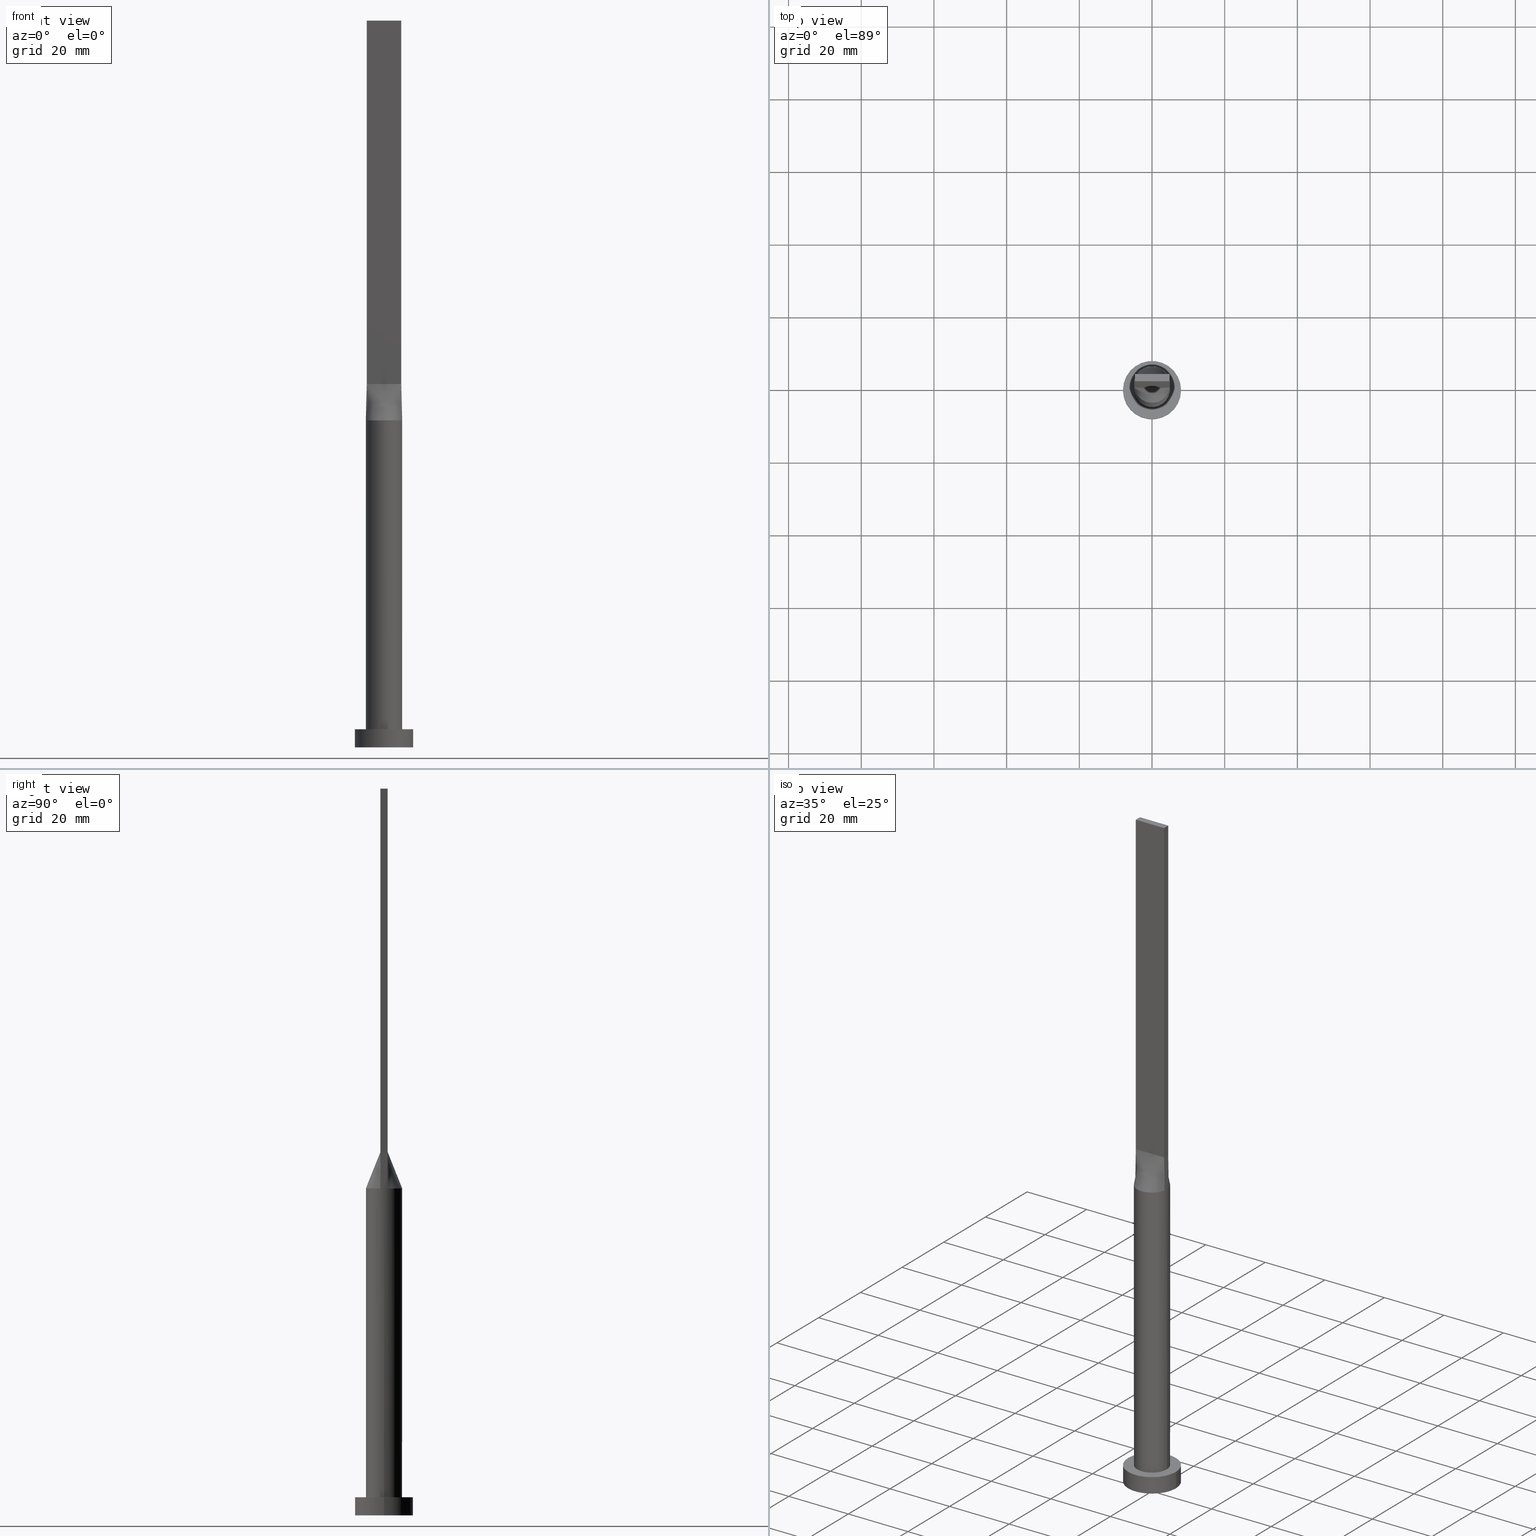
[diagram: canonical four-view strip — front | top / right | iso, engineering-drawing reading convention]
A machine part, canonical four-view strip (front | top / right | iso — engineering-drawing reading convention). The complete STEP part file that produces these views, byte-faithful:
ISO-10303-21;
HEADER;
FILE_DESCRIPTION (( 'STEP AP203' ),
    '1' );
FILE_NAME ('bb7b.STEP',
    '2023-02-13T09:51:01',
    ( '' ),
    ( '' ),
    'SwSTEP 2.0',
    'SolidWorks 2019',
    '' );
FILE_SCHEMA (( 'CONFIG_CONTROL_DESIGN' ));
ENDSEC;

DATA;
#1 = CARTESIAN_POINT ( 'NONE',  ( -0.9895833333333223791, -0.9999999999999991118, 100.0000000000000000 ) ) ;
#2 = CARTESIAN_POINT ( 'NONE',  ( -0.3380808736611314869, 4.999999999999999112, 90.00000000000002842 ) ) ;
#3 = VERTEX_POINT ( 'NONE', #250 ) ;
#4 = AXIS2_PLACEMENT_3D ( 'NONE', #117, #489, #70 ) ;
#5 = DIRECTION ( 'NONE',  ( 1.000000000000000000, 0.000000000000000000, 0.000000000000000000 ) ) ;
#6 = LOCAL_TIME ( 10, 51, 1.000000000000000000, #264 ) ;
#7 = CARTESIAN_POINT ( 'NONE',  ( -2.546422404201597711, 4.351724242187074765, 90.00000000000001421 ) ) ;
#8 = ADVANCED_FACE ( 'NONE', ( #301 ), #441, .T. ) ;
#9 = CARTESIAN_POINT ( 'NONE',  ( -4.963482788771057308, -0.6940665520219756468, 90.00000000000001421 ) ) ;
#10 = CARTESIAN_POINT ( 'NONE',  ( -4.750000000000000000, 1.000000000000000000, 100.0000000000000000 ) ) ;
#11 = FACE_OUTER_BOUND ( 'NONE', #283, .T. ) ;
#12 = CARTESIAN_POINT ( 'NONE',  ( 0.7916666666666767327, -0.9999999999999995559, 100.0000000000000000 ) ) ;
#13 = CARTESIAN_POINT ( 'NONE',  ( -0.6760916456145782405, 4.965368365385191218, 90.00000000000001421 ) ) ;
#14 = CARTESIAN_POINT ( 'NONE',  ( 0.000000000000000000, 0.000000000000000000, 5.000000000000000000 ) ) ;
#15 = CARTESIAN_POINT ( 'NONE',  ( 4.750000000000000000, 1.000000000000000000, 200.0000000000000000 ) ) ;
#16 = CC_DESIGN_APPROVAL ( #94, ( #355 ) ) ;
#17 = EDGE_CURVE ( 'NONE', #411, #415, #75, .T. ) ;
#18 = CARTESIAN_POINT ( 'NONE',  ( 4.963482788771055532, -0.6940665520219791995, 90.00000000000001421 ) ) ;
#19 = LINE ( 'NONE', #513, #455 ) ;
#20 = LINE ( 'NONE', #398, #31 ) ;
#21 = ORIENTED_EDGE ( 'NONE', *, *, #329, .F. ) ;
#22 = DIRECTION ( 'NONE',  ( 0.000000000000000000, -1.000000000000000000, 0.000000000000000000 ) ) ;
#23 = CARTESIAN_POINT ( 'NONE',  ( -4.750000000000000000, 1.000000000000000000, 100.0000000000000000 ) ) ;
#24 = CARTESIAN_POINT ( 'NONE',  ( 4.808752461626938590, 1.429035605956548549, 90.00000000000004263 ) ) ;
#25 = CARTESIAN_POINT ( 'NONE',  ( 0.6760916456145784625, 4.965368365385191218, 90.00000000000004263 ) ) ;
#26 = EDGE_LOOP ( 'NONE', ( #208, #571 ) ) ;
#27 = CARTESIAN_POINT ( 'NONE',  ( 4.750000000000000000, 0.3333333333333336479, 100.0000000000000000 ) ) ;
#28 = ADVANCED_FACE ( 'NONE', ( #397 ), #383, .T. ) ;
#29 = ORIENTED_EDGE ( 'NONE', *, *, #366, .F. ) ;
#30 = CALENDAR_DATE ( 2023, 13, 2 ) ;
#31 = VECTOR ( 'NONE', #158, 1000.000000000000000 ) ;
#32 = ORIENTED_EDGE ( 'NONE', *, *, #351, .F. ) ;
#33 =( LENGTH_UNIT ( ) NAMED_UNIT ( * ) SI_UNIT ( .MILLI., .METRE. ) );
#34 = LINE ( 'NONE', #281, #335 ) ;
#35 = ORIENTED_EDGE ( 'NONE', *, *, #39, .F. ) ;
#36 = EDGE_LOOP ( 'NONE', ( #419, #178, #395, #514, #124 ) ) ;
#37 = DATE_AND_TIME ( #164, #373 ) ;
#38 = CARTESIAN_POINT ( 'NONE',  ( 5.000000000000000000, 0.3470731991229993874, 90.00000000000002842 ) ) ;
#39 = EDGE_CURVE ( 'NONE', #3, #116, #358, .T. ) ;
#40 = CIRCLE ( 'NONE', #211, 5.000000000000000000 ) ;
#41 = EDGE_LOOP ( 'NONE', ( #82, #501, #61, #456 ) ) ;
#42 = EDGE_LOOP ( 'NONE', ( #468, #461, #225, #334 ) ) ;
#43 = PERSON_AND_ORGANIZATION ( #442, #336 ) ;
#44 = CARTESIAN_POINT ( 'NONE',  ( -0.6760916456145810161, -4.965368365385190330, 90.00000000000002842 ) ) ;
#45 = AXIS2_PLACEMENT_3D ( 'NONE', #261, #314, #321 ) ;
#46 = VERTEX_POINT ( 'NONE', #499 ) ;
#47 = DIRECTION ( 'NONE',  ( -1.000000000000000000, 0.000000000000000000, 0.000000000000000000 ) ) ;
#48 = CARTESIAN_POINT ( 'NONE',  ( -3.900093280396790263, -3.182195704254722646, 90.00000000000002842 ) ) ;
#49 = DIRECTION ( 'NONE',  ( -0.000000000000000000, -0.000000000000000000, -1.000000000000000000 ) ) ;
#50 = AXIS2_PLACEMENT_3D ( 'NONE', #478, #523, #187 ) ;
#51 = CARTESIAN_POINT ( 'NONE',  ( -0.3958333333333227677, -0.9999999999999991118, 100.0000000000000000 ) ) ;
#52 = PRODUCT ( 'bb7b', 'bb7b', '', ( #593 ) ) ;
#53 = CARTESIAN_POINT ( 'NONE',  ( -1.979166666666656749, -0.9999999999999991118, 100.0000000000000000 ) ) ;
#54 = CARTESIAN_POINT ( 'NONE',  ( 3.166666666666663854, 1.000000000000000000, 100.0000000000000142 ) ) ;
#55 = LINE ( 'NONE', #255, #470 ) ;
#56 = CARTESIAN_POINT ( 'NONE',  ( 1.649264041307594297, 4.731318088779739917, 89.99999999999998579 ) ) ;
#57 = ADVANCED_FACE ( 'NONE', ( #566 ), #465, .T. ) ;
#58 = CARTESIAN_POINT ( 'NONE',  ( -4.750000000000000000, -0.9999999999999991118, 100.0000000000000000 ) ) ;
#59 = CARTESIAN_POINT ( 'NONE',  ( -4.354166666666667851, 1.000000000000000000, 100.0000000000000142 ) ) ;
#60 = DIRECTION ( 'NONE',  ( -1.000000000000000000, 0.000000000000000000, 0.000000000000000000 ) ) ;
#61 = ORIENTED_EDGE ( 'NONE', *, *, #481, .T. ) ;
#62 = LINE ( 'NONE', #248, #242 ) ;
#63 = CARTESIAN_POINT ( 'NONE',  ( 0.000000000000000000, 0.000000000000000000, 0.000000000000000000 ) ) ;
#64 = CARTESIAN_POINT ( 'NONE',  ( -4.750000000000000000, 1.000000000000000000, 200.0000000000000000 ) ) ;
#65 = VERTEX_POINT ( 'NONE', #180 ) ;
#66 = CARTESIAN_POINT ( 'NONE',  ( 4.750000000000000000, 1.000000000000000000, 100.0000000000000000 ) ) ;
#67 = EDGE_CURVE ( 'NONE', #415, #131, #371, .T. ) ;
#68 = APPLICATION_CONTEXT ( 'configuration controlled 3d designs of mechanical parts and assemblies' ) ;
#69 = DIRECTION ( 'NONE',  ( 1.000000000000000000, 0.000000000000000000, 0.000000000000000000 ) ) ;
#70 = DIRECTION ( 'NONE',  ( 1.000000000000000000, 0.000000000000000000, 0.000000000000000000 ) ) ;
#71 = DIRECTION ( 'NONE',  ( 1.000000000000000000, 0.000000000000000000, -0.000000000000000000 ) ) ;
#72 = VECTOR ( 'NONE', #448, 1000.000000000000000 ) ;
#73 = VERTEX_POINT ( 'NONE', #64 ) ;
#74 = PERSON_AND_ORGANIZATION_ROLE ( 'design_supplier' ) ;
#75 = CIRCLE ( 'NONE', #140, 8.000000000000000000 ) ;
#76 = ADVANCED_FACE ( 'NONE', ( #449 ), #543, .T. ) ;
#77 = APPROVAL_ROLE ( '' ) ;
#78 = DIRECTION ( 'NONE',  ( 0.000000000000000000, 0.000000000000000000, 1.000000000000000000 ) ) ;
#79 = AXIS2_PLACEMENT_3D ( 'NONE', #538, #482, #295 ) ;
#80 = VECTOR ( 'NONE', #198, 999.9999999999998863 ) ;
#81 = COORDINATED_UNIVERSAL_TIME_OFFSET ( 1, 0, .AHEAD. ) ;
#82 = ORIENTED_EDGE ( 'NONE', *, *, #323, .T. ) ;
#83 = CARTESIAN_POINT ( 'NONE',  ( 0.000000000000000000, 0.000000000000000000, 0.000000000000000000 ) ) ;
#84 = VERTEX_POINT ( 'NONE', #434 ) ;
#85 = CARTESIAN_POINT ( 'NONE',  ( -4.750000000000000000, -0.9999999999999991118, 100.0000000000000000 ) ) ;
#86 = AXIS2_PLACEMENT_3D ( 'NONE', #498, #78, #266 ) ;
#87 = ORIENTED_EDGE ( 'NONE', *, *, #126, .T. ) ;
#88 = DATE_TIME_ROLE ( 'classification_date' ) ;
#89 = CARTESIAN_POINT ( 'NONE',  ( -4.214142381859629971, -2.735777372109855499, 90.00000000000005684 ) ) ;
#90 = B_SPLINE_SURFACE_WITH_KNOTS ( 'NONE', 3, 1, ( 
 ( #138, #464 ),
 ( #417, #222 ),
 ( #318, #474 ),
 ( #386, #151 ),
 ( #9, #389 ),
 ( #118, #58 ) ),
 .UNSPECIFIED., .F., .F., .F.,
 ( 4, 2, 4 ),
 ( 2, 2 ),
 ( 0.000000000000000000, 0.5000000000000000000, 1.000000000000000000 ),
 ( 0.000000000000000000, 1.000000000000000000 ),
 .UNSPECIFIED. ) ;
#91 = ORIENTED_EDGE ( 'NONE', *, *, #39, .T. ) ;
#92 = SHAPE_DEFINITION_REPRESENTATION ( #141, #181 ) ;
#93 = CARTESIAN_POINT ( 'NONE',  ( -3.166666666666660301, -0.9999999999999991118, 100.0000000000000142 ) ) ;
#94 = APPROVAL ( #596, 'NEUR�EN�' ) ;
#95 = APPROVAL_ROLE ( '' ) ;
#96 = FACE_OUTER_BOUND ( 'NONE', #458, .T. ) ;
#97 = CIRCLE ( 'NONE', #79, 5.000000000000000000 ) ;
#98 =( GEOMETRIC_REPRESENTATION_CONTEXT ( 3 ) GLOBAL_UNCERTAINTY_ASSIGNED_CONTEXT ( ( #170 ) ) GLOBAL_UNIT_ASSIGNED_CONTEXT ( ( #33, #408, #271 ) ) REPRESENTATION_CONTEXT ( 'NONE', 'WORKASPACE' ) );
#99 = CARTESIAN_POINT ( 'NONE',  ( 0.3958333333333280968, 1.000000000000000000, 100.0000000000000000 ) ) ;
#100 = CARTESIAN_POINT ( 'NONE',  ( -4.750000000000000000, -0.9999999999999991118, 200.0000000000000000 ) ) ;
#101 = CARTESIAN_POINT ( 'NONE',  ( 2.546422404201595491, -4.351724242187078318, 90.00000000000004263 ) ) ;
#102 = LINE ( 'NONE', #249, #265 ) ;
#103 = CARTESIAN_POINT ( 'NONE',  ( -1.979166666666670737, 1.000000000000000000, 100.0000000000000284 ) ) ;
#104 = VERTEX_POINT ( 'NONE', #193 ) ;
#105 = CARTESIAN_POINT ( 'NONE',  ( -4.892747712986291297, 1.030052143680498133, 90.00000000000001421 ) ) ;
#106 = B_SPLINE_SURFACE_WITH_KNOTS ( 'NONE', 3, 1, ( 
 ( #356, #390 ),
 ( #532, #344 ),
 ( #143, #346 ),
 ( #576, #54 ),
 ( #522, #111 ),
 ( #241, #298 ),
 ( #479, #384 ),
 ( #56, #184 ),
 ( #379, #192 ),
 ( #146, #99 ),
 ( #154, #350 ),
 ( #2, #535 ),
 ( #13, #339 ),
 ( #529, #473 ),
 ( #573, #387 ),
 ( #7, #525 ),
 ( #115, #103 ),
 ( #108, #236 ),
 ( #433, #570 ),
 ( #476, #189 ),
 ( #484, #59 ),
 ( #246, #10 ) ),
 .UNSPECIFIED., .F., .F., .F.,
 ( 4, 2, 2, 2, 2, 2, 2, 2, 2, 2, 4 ),
 ( 2, 2 ),
 ( 0.000000000000000000, 0.1250000000000000278, 0.2500000000000000000, 0.3749999999999999445, 0.4375000000000000000, 0.5000000000000000000, 0.5625000000000000000, 0.6250000000000000000, 0.7500000000000000000, 0.8750000000000001110, 1.000000000000000000 ),
 ( 0.000000000000000000, 1.000000000000000000 ),
 .UNSPECIFIED. ) ;
#107 = CARTESIAN_POINT ( 'NONE',  ( 1.649264041307594297, 4.731318088779739917, 89.99999999999998579 ) ) ;
#108 = CARTESIAN_POINT ( 'NONE',  ( -3.900093280396789819, 3.182195704254724422, 90.00000000000001421 ) ) ;
#109 = VECTOR ( 'NONE', #402, 999.9999999999998863 ) ;
#110 = DIRECTION ( 'NONE',  ( -0.000000000000000000, -0.000000000000000000, -1.000000000000000000 ) ) ;
#111 = CARTESIAN_POINT ( 'NONE',  ( 2.770833333333329929, 1.000000000000000000, 100.0000000000000284 ) ) ;
#112 = ORIENTED_EDGE ( 'NONE', *, *, #520, .F. ) ;
#113 = ADVANCED_FACE ( 'NONE', ( #388 ), #412, .F. ) ;
#114 = CARTESIAN_POINT ( 'NONE',  ( 4.821374462466871513, 1.015026202624605522, 95.00000000000000000 ) ) ;
#115 = CARTESIAN_POINT ( 'NONE',  ( -3.067114325249248097, 3.991228734590924976, 90.00000000000002842 ) ) ;
#116 = VERTEX_POINT ( 'NONE', #217 ) ;
#117 = CARTESIAN_POINT ( 'NONE',  ( 0.000000000000000000, 0.000000000000000000, 90.00000000000001421 ) ) ;
#118 = CARTESIAN_POINT ( 'NONE',  ( -4.892748924933745691, -1.030052405249208158, 90.00000000000001421 ) ) ;
#119 = CARTESIAN_POINT ( 'NONE',  ( 0.3958333333333435289, -0.9999999999999993339, 100.0000000000000142 ) ) ;
#120 = DIRECTION ( 'NONE',  ( -1.000000000000000000, 0.000000000000000000, 0.000000000000000000 ) ) ;
#121 = ORIENTED_EDGE ( 'NONE', *, *, #173, .T. ) ;
#122 = DIRECTION ( 'NONE',  ( 0.000000000000000000, 0.000000000000000000, 1.000000000000000000 ) ) ;
#123 = DIRECTION ( 'NONE',  ( -0.000000000000000000, -0.000000000000000000, -1.000000000000000000 ) ) ;
#124 = ORIENTED_EDGE ( 'NONE', *, *, #599, .F. ) ;
#125 = PERSON_AND_ORGANIZATION ( #442, #336 ) ;
#126 = EDGE_CURVE ( 'NONE', #84, #147, #205, .T. ) ;
#127 = CARTESIAN_POINT ( 'NONE',  ( -2.546422404201597711, 4.351724242187074765, 90.00000000000001421 ) ) ;
#128 = CARTESIAN_POINT ( 'NONE',  ( 0.000000000000000000, 0.000000000000000000, 0.000000000000000000 ) ) ;
#129 = DIRECTION ( 'NONE',  ( 0.000000000000000000, 0.000000000000000000, 1.000000000000000000 ) ) ;
#130 = ADVANCED_FACE ( 'NONE', ( #284 ), #233, .F. ) ;
#131 = VERTEX_POINT ( 'NONE', #227 ) ;
#132 = DIRECTION ( 'NONE',  ( 1.000000000000000000, 0.000000000000000000, -0.000000000000000000 ) ) ;
#133 = ORIENTED_EDGE ( 'NONE', *, *, #599, .T. ) ;
#134 = ADVANCED_FACE ( 'NONE', ( #418, #96 ), #507, .T. ) ;
#135 = VECTOR ( 'NONE', #527, 1000.000000000000000 ) ;
#136 = VERTEX_POINT ( 'NONE', #167 ) ;
#137 = DATE_AND_TIME ( #562, #422 ) ;
#138 = CARTESIAN_POINT ( 'NONE',  ( -4.892748924933745691, 1.030052405249209269, 90.00000000000001421 ) ) ;
#139 = CC_DESIGN_PERSON_AND_ORGANIZATION_ASSIGNMENT ( #462, #591, ( #416 ) ) ;
#140 = AXIS2_PLACEMENT_3D ( 'NONE', #197, #392, #69 ) ;
#141 = PRODUCT_DEFINITION_SHAPE ( 'NONE', 'NONE',  #416 ) ;
#142 = CARTESIAN_POINT ( 'NONE',  ( -3.067114325249248097, 3.991228734590924976, 90.00000000000002842 ) ) ;
#143 = CARTESIAN_POINT ( 'NONE',  ( 4.667610010780610885, 1.859271532507960289, 90.00000000000004263 ) ) ;
#144 = AXIS2_PLACEMENT_3D ( 'NONE', #300, #345, #569 ) ;
#145 = EDGE_CURVE ( 'NONE', #46, #147, #518, .T. ) ;
#146 = CARTESIAN_POINT ( 'NONE',  ( 0.6760916456145784625, 4.965368365385191218, 90.00000000000004263 ) ) ;
#147 = VERTEX_POINT ( 'NONE', #503 ) ;
#148 = LINE ( 'NONE', #396, #364 ) ;
#149 = PRODUCT_RELATED_PRODUCT_CATEGORY ( 'detail', '', ( #52 ) ) ;
#150 = AXIS2_PLACEMENT_3D ( 'NONE', #368, #129, #269 ) ;
#151 = CARTESIAN_POINT ( 'NONE',  ( -4.750000000000000000, -0.3333333333333323711, 100.0000000000000000 ) ) ;
#152 = PLANE ( 'NONE',  #391 ) ;
#153 = CARTESIAN_POINT ( 'NONE',  ( 3.900093280396789819, -3.182195704254725754, 90.00000000000002842 ) ) ;
#154 = CARTESIAN_POINT ( 'NONE',  ( 0.3380808736611315979, 4.999999999999999112, 90.00000000000001421 ) ) ;
#155 = ORIENTED_EDGE ( 'NONE', *, *, #215, .F. ) ;
#156 = DIRECTION ( 'NONE',  ( 1.000000000000000000, -6.847592668329501559E-17, 0.000000000000000000 ) ) ;
#157 = CARTESIAN_POINT ( 'NONE',  ( 5.000000000000000888, -0.3470731991230004421, 90.00000000000002842 ) ) ;
#158 = DIRECTION ( 'NONE',  ( -1.000000000000000000, -0.000000000000000000, -0.000000000000000000 ) ) ;
#159 = PERSON_AND_ORGANIZATION ( #442, #336 ) ;
#160 = LINE ( 'NONE', #201, #109 ) ;
#161 = CYLINDRICAL_SURFACE ( 'NONE', #210, 8.000000000000000000 ) ;
#162 = DIRECTION ( 'NONE',  ( -1.000000000000000000, 0.000000000000000000, 0.000000000000000000 ) ) ;
#163 = CARTESIAN_POINT ( 'NONE',  ( -1.331739278681919991, 4.830988864699813590, 90.00000000000001421 ) ) ;
#164 = CALENDAR_DATE ( 2023, 13, 2 ) ;
#165 = EDGE_CURVE ( 'NONE', #84, #104, #324, .T. ) ;
#166 = FACE_OUTER_BOUND ( 'NONE', #294, .T. ) ;
#167 = CARTESIAN_POINT ( 'NONE',  ( -4.750000000000000000, -0.9999999999999991118, 200.0000000000000000 ) ) ;
#168 = CARTESIAN_POINT ( 'NONE',  ( 4.750000000000000000, 1.000000000000000000, 100.0000000000000000 ) ) ;
#169 = CARTESIAN_POINT ( 'NONE',  ( -4.750000000000000000, -0.9999999999999991118, 200.0000000000000000 ) ) ;
#170 = UNCERTAINTY_MEASURE_WITH_UNIT (LENGTH_MEASURE( 1.000000000000000082E-05 ), #33, 'distance_accuracy_value', 'NONE');
#171 = DATE_AND_TIME ( #30, #6 ) ;
#172 = AXIS2_PLACEMENT_3D ( 'NONE', #307, #365, #132 ) ;
#173 = EDGE_CURVE ( 'NONE', #203, #131, #251, .T. ) ;
#174 = ORIENTED_EDGE ( 'NONE', *, *, #323, .F. ) ;
#175 = DIRECTION ( 'NONE',  ( 0.000000000000000000, 0.000000000000000000, 1.000000000000000000 ) ) ;
#176 = VECTOR ( 'NONE', #252, 1000.000000000000000 ) ;
#177 = ORIENTED_EDGE ( 'NONE', *, *, #232, .T. ) ;
#178 = ORIENTED_EDGE ( 'NONE', *, *, #520, .T. ) ;
#179 = ORIENTED_EDGE ( 'NONE', *, *, #505, .T. ) ;
#180 = CARTESIAN_POINT ( 'NONE',  ( -5.000000000000000888, -2.735102206719564433E-16, 90.00000000000002842 ) ) ;
#181 = ADVANCED_BREP_SHAPE_REPRESENTATION ( 'bb7b', ( #377, #347 ), #98 ) ;
#182 = CARTESIAN_POINT ( 'NONE',  ( -0.1979166666666562768, -0.9999999999999993339, 100.0000000000000142 ) ) ;
#183 = ADVANCED_FACE ( 'NONE', ( #582 ), #161, .T. ) ;
#184 = CARTESIAN_POINT ( 'NONE',  ( 0.9895833333333288184, 1.000000000000000000, 100.0000000000000000 ) ) ;
#185 = ORIENTED_EDGE ( 'NONE', *, *, #215, .T. ) ;
#186 = AXIS2_PLACEMENT_3D ( 'NONE', #15, #292, #348 ) ;
#187 = DIRECTION ( 'NONE',  ( 1.000000000000000000, 0.000000000000000000, -0.000000000000000000 ) ) ;
#188 = CARTESIAN_POINT ( 'NONE',  ( -5.000000000000000000, 0.000000000000000000, 90.00000000000001421 ) ) ;
#189 = CARTESIAN_POINT ( 'NONE',  ( -3.958333333333335258, 1.000000000000000000, 100.0000000000000284 ) ) ;
#190 = LINE ( 'NONE', #114, #80 ) ;
#191 = CARTESIAN_POINT ( 'NONE',  ( 2.546422404201596823, 4.351724242187075653, 90.00000000000001421 ) ) ;
#192 = CARTESIAN_POINT ( 'NONE',  ( 0.7916666666666618557, 1.000000000000000000, 100.0000000000000000 ) ) ;
#193 = CARTESIAN_POINT ( 'NONE',  ( 4.892748924933744803, 1.030052405249211045, 90.00000000000001421 ) ) ;
#194 = LINE ( 'NONE', #238, #176 ) ;
#195 = CARTESIAN_POINT ( 'NONE',  ( 0.9895833333333431403, -0.9999999999999995559, 100.0000000000000142 ) ) ;
#196 = DIRECTION ( 'NONE',  ( 1.000000000000000000, 0.000000000000000000, 0.000000000000000000 ) ) ;
#197 = CARTESIAN_POINT ( 'NONE',  ( 0.000000000000000000, 0.000000000000000000, 5.000000000000000000 ) ) ;
#198 = DIRECTION ( 'NONE',  ( -0.01427337385845005129, -0.003004920812305424214, 0.9998936149659166661 ) ) ;
#199 = CARTESIAN_POINT ( 'NONE',  ( 4.750000000000000000, -0.6666666666666664076, 100.0000000000000000 ) ) ;
#200 = CARTESIAN_POINT ( 'NONE',  ( 0.000000000000000000, 0.000000000000000000, 90.00000000000001421 ) ) ;
#201 = CARTESIAN_POINT ( 'NONE',  ( 4.821374462466871513, -1.015026202624605967, 95.00000000000000000 ) ) ;
#202 = FACE_OUTER_BOUND ( 'NONE', #213, .T. ) ;
#203 = VERTEX_POINT ( 'NONE', #204 ) ;
#204 = CARTESIAN_POINT ( 'NONE',  ( -8.000000000000000000, 0.000000000000000000, 0.000000000000000000 ) ) ;
#205 = LINE ( 'NONE', #403, #500 ) ;
#206 = CARTESIAN_POINT ( 'NONE',  ( 4.963482788771057308, 0.6940665520219779783, 90.00000000000001421 ) ) ;
#207 = CARTESIAN_POINT ( 'NONE',  ( 0.3380808736611315979, 4.999999999999999112, 90.00000000000001421 ) ) ;
#208 = ORIENTED_EDGE ( 'NONE', *, *, #173, .F. ) ;
#209 = COORDINATED_UNIVERSAL_TIME_OFFSET ( 1, 0, .AHEAD. ) ;
#210 = AXIS2_PLACEMENT_3D ( 'NONE', #267, #495, #310 ) ;
#211 = AXIS2_PLACEMENT_3D ( 'NONE', #200, #534, #5 ) ;
#212 = DIRECTION ( 'NONE',  ( 1.000000000000000000, 0.000000000000000000, 0.000000000000000000 ) ) ;
#213 = EDGE_LOOP ( 'NONE', ( #584, #133, #280, #367 ) ) ;
#214 = LINE ( 'NONE', #549, #544 ) ;
#215 = EDGE_CURVE ( 'NONE', #466, #453, #276, .T. ) ;
#216 = AXIS2_PLACEMENT_3D ( 'NONE', #296, #123, #60 ) ;
#217 = CARTESIAN_POINT ( 'NONE',  ( 4.750000000000000000, -0.9999999999999997780, 100.0000000000000000 ) ) ;
#218 = ORIENTED_EDGE ( 'NONE', *, *, #304, .F. ) ;
#219 = APPLICATION_PROTOCOL_DEFINITION ( 'international standard', 'config_control_design', 1994, #68 ) ;
#220 = DIRECTION ( 'NONE',  ( 1.000000000000000000, 0.000000000000000000, 0.000000000000000000 ) ) ;
#221 = VECTOR ( 'NONE', #110, 1000.000000000000000 ) ;
#222 = CARTESIAN_POINT ( 'NONE',  ( -4.750000000000000000, 0.6666666666666670737, 100.0000000000000000 ) ) ;
#223 = VERTEX_POINT ( 'NONE', #579 ) ;
#224 = CC_DESIGN_PERSON_AND_ORGANIZATION_ASSIGNMENT ( #316, #502, ( #52 ) ) ;
#225 = ORIENTED_EDGE ( 'NONE', *, *, #496, .F. ) ;
#226 = CARTESIAN_POINT ( 'NONE',  ( 0.3380808736611294329, -5.000000000000000000, 90.00000000000004263 ) ) ;
#227 = CARTESIAN_POINT ( 'NONE',  ( 8.000000000000000000, 9.797174393178825657E-16, 0.000000000000000000 ) ) ;
#228 = ORIENTED_EDGE ( 'NONE', *, *, #438, .T. ) ;
#229 = CARTESIAN_POINT ( 'NONE',  ( -4.667610010780609997, -1.859271532507959845, 90.00000000000004263 ) ) ;
#230 = CARTESIAN_POINT ( 'NONE',  ( 3.166666666666674068, -0.9999999999999995559, 100.0000000000000284 ) ) ;
#231 = CARTESIAN_POINT ( 'NONE',  ( -0.3380808736611334853, -5.000000000000000000, 90.00000000000004263 ) ) ;
#232 = EDGE_CURVE ( 'NONE', #413, #263, #20, .T. ) ;
#233 = PLANE ( 'NONE',  #469 ) ;
#234 = ORIENTED_EDGE ( 'NONE', *, *, #565, .F. ) ;
#235 = CARTESIAN_POINT ( 'NONE',  ( -1.583333333333322823, -0.9999999999999991118, 100.0000000000000000 ) ) ;
#236 = CARTESIAN_POINT ( 'NONE',  ( -2.770833333333337478, 1.000000000000000000, 100.0000000000000284 ) ) ;
#237 = CLOSED_SHELL ( 'NONE', ( #76, #8, #183, #134, #113, #262, #57, #28, #381, #244, #516, #427, #286, #130, #558 ) ) ;
#238 = CARTESIAN_POINT ( 'NONE',  ( 4.750000000000000000, -0.9999999999999997780, 200.0000000000000000 ) ) ;
#239 = CARTESIAN_POINT ( 'NONE',  ( 2.770833333333341475, -0.9999999999999995559, 100.0000000000000284 ) ) ;
#240 = CARTESIAN_POINT ( 'NONE',  ( 4.667610010780610885, 1.859271532507960289, 90.00000000000004263 ) ) ;
#241 = CARTESIAN_POINT ( 'NONE',  ( 3.067114325249248097, 3.991228734590925864, 90.00000000000008527 ) ) ;
#242 = VECTOR ( 'NONE', #337, 999.9999999999998863 ) ;
#243 = APPROVAL_PERSON_ORGANIZATION ( #159, #313, #77 ) ;
#244 = ADVANCED_FACE ( 'NONE', ( #202 ), #106, .T. ) ;
#245 = LINE ( 'NONE', #382, #135 ) ;
#246 = CARTESIAN_POINT ( 'NONE',  ( -4.892748924933745691, 1.030052405249209269, 90.00000000000001421 ) ) ;
#247 = CC_DESIGN_PERSON_AND_ORGANIZATION_ASSIGNMENT ( #457, #551, ( #553 ) ) ;
#248 = CARTESIAN_POINT ( 'NONE',  ( -4.821374462466872401, -1.015026202624603524, 95.00000000000000000 ) ) ;
#249 = CARTESIAN_POINT ( 'NONE',  ( 4.750000000000000000, 1.000000000000000000, 200.0000000000000000 ) ) ;
#250 = CARTESIAN_POINT ( 'NONE',  ( -4.750000000000000000, -0.9999999999999991118, 100.0000000000000000 ) ) ;
#251 = CIRCLE ( 'NONE', #475, 8.000000000000000000 ) ;
#252 = DIRECTION ( 'NONE',  ( 0.000000000000000000, 1.000000000000000000, 0.000000000000000000 ) ) ;
#253 = CARTESIAN_POINT ( 'NONE',  ( 4.892748924933744803, 1.030052405249211045, 90.00000000000001421 ) ) ;
#254 = CARTESIAN_POINT ( 'NONE',  ( 4.892748924933744803, -1.030052405249212155, 90.00000000000001421 ) ) ;
#255 = CARTESIAN_POINT ( 'NONE',  ( 4.750000000000000000, 1.000000000000000000, 100.0000000000000000 ) ) ;
#256 = EDGE_CURVE ( 'NONE', #131, #203, #372, .T. ) ;
#257 = LINE ( 'NONE', #188, #72 ) ;
#258 = DIRECTION ( 'NONE',  ( 1.000000000000000000, 0.000000000000000000, 0.000000000000000000 ) ) ;
#259 = EDGE_LOOP ( 'NONE', ( #29, #299, #598, #322 ) ) ;
#260 = DIRECTION ( 'NONE',  ( -1.000000000000000000, 6.847592668329501559E-17, 0.000000000000000000 ) ) ;
#261 = CARTESIAN_POINT ( 'NONE',  ( 0.000000000000000000, 0.000000000000000000, 5.000000000000000000 ) ) ;
#262 = ADVANCED_FACE ( 'NONE', ( #581 ), #494, .T. ) ;
#263 = VERTEX_POINT ( 'NONE', #23 ) ;
#264 = COORDINATED_UNIVERSAL_TIME_OFFSET ( 1, 0, .AHEAD. ) ;
#265 = VECTOR ( 'NONE', #564, 1000.000000000000000 ) ;
#266 = DIRECTION ( 'NONE',  ( 1.000000000000000000, 0.000000000000000000, 0.000000000000000000 ) ) ;
#267 = CARTESIAN_POINT ( 'NONE',  ( 0.000000000000000000, 0.000000000000000000, 5.000000000000000000 ) ) ;
#268 = SECURITY_CLASSIFICATION_LEVEL ( 'unclassified' ) ;
#269 = DIRECTION ( 'NONE',  ( 1.000000000000000000, 0.000000000000000000, -0.000000000000000000 ) ) ;
#270 = EDGE_LOOP ( 'NONE', ( #424, #362, #155, #112, #557, #275 ) ) ;
#271 =( NAMED_UNIT ( * ) SI_UNIT ( $, .STERADIAN. ) SOLID_ANGLE_UNIT ( ) );
#272 = VECTOR ( 'NONE', #311, 1000.000000000000000 ) ;
#273 = CARTESIAN_POINT ( 'NONE',  ( 4.750000000000000000, -0.3333333333333329818, 100.0000000000000000 ) ) ;
#274 = DIRECTION ( 'NONE',  ( 1.000000000000000000, 0.000000000000000000, 0.000000000000000000 ) ) ;
#275 = ORIENTED_EDGE ( 'NONE', *, *, #145, .T. ) ;
#276 = CIRCLE ( 'NONE', #4, 5.000000000000000000 ) ;
#277 = CC_DESIGN_APPROVAL ( #533, ( #553 ) ) ;
#278 = CARTESIAN_POINT ( 'NONE',  ( -4.808752461626938590, -1.429035605956546329, 90.00000000000004263 ) ) ;
#279 = EDGE_CURVE ( 'NONE', #453, #116, #160, .T. ) ;
#280 = ORIENTED_EDGE ( 'NONE', *, *, #232, .F. ) ;
#281 = CARTESIAN_POINT ( 'NONE',  ( 4.750000000000000000, 1.000000000000000000, 200.0000000000000000 ) ) ;
#282 = DIRECTION ( 'NONE',  ( 0.000000000000000000, 0.000000000000000000, 1.000000000000000000 ) ) ;
#283 = EDGE_LOOP ( 'NONE', ( #328, #511, #592, #369 ) ) ;
#284 = FACE_OUTER_BOUND ( 'NONE', #42, .T. ) ;
#285 = CARTESIAN_POINT ( 'NONE',  ( 4.667610010780611773, -1.859271532507964286, 90.00000000000007105 ) ) ;
#286 = ADVANCED_FACE ( 'NONE', ( #166 ), #589, .F. ) ;
#287 = CARTESIAN_POINT ( 'NONE',  ( -0.7916666666666558605, -0.9999999999999991118, 100.0000000000000000 ) ) ;
#288 = CARTESIAN_POINT ( 'NONE',  ( -2.546422404201599488, -4.351724242187074765, 90.00000000000002842 ) ) ;
#289 = APPROVAL_PERSON_ORGANIZATION ( #43, #94, #95 ) ;
#290 = CARTESIAN_POINT ( 'NONE',  ( -4.214142381859630859, 2.735777372109856387, 90.00000000000002842 ) ) ;
#291 = CARTESIAN_POINT ( 'NONE',  ( -3.958333333333330373, -0.9999999999999991118, 100.0000000000000142 ) ) ;
#292 = DIRECTION ( 'NONE',  ( 0.000000000000000000, -1.000000000000000000, 0.000000000000000000 ) ) ;
#293 = CARTESIAN_POINT ( 'NONE',  ( 1.979166666666675845, -0.9999999999999995559, 100.0000000000000284 ) ) ;
#294 = EDGE_LOOP ( 'NONE', ( #91, #32, #385, #179 ) ) ;
#295 = DIRECTION ( 'NONE',  ( 1.000000000000000000, 0.000000000000000000, 0.000000000000000000 ) ) ;
#296 = CARTESIAN_POINT ( 'NONE',  ( 0.000000000000000000, 0.000000000000000000, 90.00000000000001421 ) ) ;
#297 = DIRECTION ( 'NONE',  ( -0.000000000000000000, 1.000000000000000000, -0.000000000000000000 ) ) ;
#298 = CARTESIAN_POINT ( 'NONE',  ( 1.979166666666662966, 1.000000000000000000, 100.0000000000000142 ) ) ;
#299 = ORIENTED_EDGE ( 'NONE', *, *, #67, .T. ) ;
#300 = CARTESIAN_POINT ( 'NONE',  ( 0.000000000000000000, 0.000000000000000000, 90.00000000000001421 ) ) ;
#301 = FACE_OUTER_BOUND ( 'NONE', #259, .T. ) ;
#302 = LINE ( 'NONE', #429, #491 ) ;
#303 = CARTESIAN_POINT ( 'NONE',  ( 1.583333333333342585, -0.9999999999999995559, 100.0000000000000142 ) ) ;
#304 = EDGE_CURVE ( 'NONE', #567, #65, #410, .T. ) ;
#305 = AXIS2_PLACEMENT_3D ( 'NONE', #444, #539, #120 ) ;
#306 = PERSON_AND_ORGANIZATION ( #442, #336 ) ;
#307 = CARTESIAN_POINT ( 'NONE',  ( 0.000000000000000000, 0.000000000000000000, 5.000000000000000000 ) ) ;
#308 = PERSON_AND_ORGANIZATION_ROLE ( 'classification_officer' ) ;
#309 = DIRECTION ( 'NONE',  ( 6.847592668329501559E-17, 1.000000000000000000, -0.000000000000000000 ) ) ;
#310 = DIRECTION ( 'NONE',  ( -1.000000000000000000, 0.000000000000000000, 0.000000000000000000 ) ) ;
#311 = DIRECTION ( 'NONE',  ( 1.000000000000000000, -6.847592668329501559E-17, 0.000000000000000000 ) ) ;
#312 = CARTESIAN_POINT ( 'NONE',  ( -1.649264041307594963, 4.731318088779739917, 90.00000000000001421 ) ) ;
#313 = APPROVAL ( #320, 'NEUR�EN�' ) ;
#314 = DIRECTION ( 'NONE',  ( 0.000000000000000000, 0.000000000000000000, 1.000000000000000000 ) ) ;
#315 = DESIGN_CONTEXT ( 'detailed design', #353, 'design' ) ;
#316 = PERSON_AND_ORGANIZATION ( #442, #336 ) ;
#317 = CARTESIAN_POINT ( 'NONE',  ( 4.892748924933744803, 1.030052405249211045, 90.00000000000001421 ) ) ;
#318 = CARTESIAN_POINT ( 'NONE',  ( -5.000000000000002665, 0.3470731991229993874, 90.00000000000002842 ) ) ;
#319 = ORIENTED_EDGE ( 'NONE', *, *, #145, .F. ) ;
#320 = APPROVAL_STATUS ( 'not_yet_approved' ) ;
#321 = DIRECTION ( 'NONE',  ( 1.000000000000000000, 0.000000000000000000, 0.000000000000000000 ) ) ;
#322 = ORIENTED_EDGE ( 'NONE', *, *, #590, .F. ) ;
#323 = EDGE_CURVE ( 'NONE', #223, #73, #34, .T. ) ;
#324 = CIRCLE ( 'NONE', #406, 5.000000000000000000 ) ;
#325 = CARTESIAN_POINT ( 'NONE',  ( 4.892748924933744803, -1.030052405249212155, 90.00000000000001421 ) ) ;
#326 = CC_DESIGN_PERSON_AND_ORGANIZATION_ASSIGNMENT ( #545, #74, ( #553 ) ) ;
#327 = CARTESIAN_POINT ( 'NONE',  ( -4.892748924933745691, -1.030052405249207936, 90.00000000000001421 ) ) ;
#328 = ORIENTED_EDGE ( 'NONE', *, *, #542, .T. ) ;
#329 = EDGE_CURVE ( 'NONE', #65, #46, #257, .T. ) ;
#330 = APPROVAL_DATE_TIME ( #137, #94 ) ;
#331 = CARTESIAN_POINT ( 'NONE',  ( -2.770833333333325488, -0.9999999999999991118, 100.0000000000000000 ) ) ;
#332 = DIRECTION ( 'NONE',  ( 0.000000000000000000, 0.000000000000000000, 1.000000000000000000 ) ) ;
#333 = COORDINATED_UNIVERSAL_TIME_OFFSET ( 1, 0, .AHEAD. ) ;
#334 = ORIENTED_EDGE ( 'NONE', *, *, #351, .T. ) ;
#335 = VECTOR ( 'NONE', #162, 1000.000000000000000 ) ;
#336 = ORGANIZATION ( 'NEUR�EN�', 'NEUR�EN�', '' ) ;
#337 = DIRECTION ( 'NONE',  ( -0.01427337385845013802, -0.003004920812305207807, -0.9998936149659166661 ) ) ;
#338 = CARTESIAN_POINT ( 'NONE',  ( 1.649264041307592965, -4.731318088779740805, 90.00000000000001421 ) ) ;
#339 = CARTESIAN_POINT ( 'NONE',  ( -0.3958333333333385329, 1.000000000000000000, 100.0000000000000000 ) ) ;
#340 = ORIENTED_EDGE ( 'NONE', *, *, #67, .F. ) ;
#341 = CARTESIAN_POINT ( 'NONE',  ( -4.750000000000000000, -0.9999999999999991118, 200.0000000000000000 ) ) ;
#342 = EDGE_CURVE ( 'NONE', #104, #567, #568, .T. ) ;
#343 = CARTESIAN_POINT ( 'NONE',  ( 3.900093280396791151, 3.182195704254724422, 90.00000000000004263 ) ) ;
#344 = CARTESIAN_POINT ( 'NONE',  ( 4.354166666666666075, 1.000000000000000000, 100.0000000000000142 ) ) ;
#345 = DIRECTION ( 'NONE',  ( 0.000000000000000000, 0.000000000000000000, 1.000000000000000000 ) ) ;
#346 = CARTESIAN_POINT ( 'NONE',  ( 3.958333333333332149, 1.000000000000000000, 100.0000000000000142 ) ) ;
#347 = AXIS2_PLACEMENT_3D ( 'NONE', #128, #175, #258 ) ;
#348 = DIRECTION ( 'NONE',  ( 0.000000000000000000, -0.000000000000000000, -1.000000000000000000 ) ) ;
#349 = CARTESIAN_POINT ( 'NONE',  ( 4.214142381859629971, -2.735777372109856831, 90.00000000000000000 ) ) ;
#350 = CARTESIAN_POINT ( 'NONE',  ( 0.1979166666666614116, 1.000000000000000000, 100.0000000000000000 ) ) ;
#351 = EDGE_CURVE ( 'NONE', #597, #116, #19, .T. ) ;
#352 = CARTESIAN_POINT ( 'NONE',  ( -8.000000000000000000, 0.000000000000000000, 5.000000000000000000 ) ) ;
#353 = APPLICATION_CONTEXT ( 'configuration controlled 3d designs of mechanical parts and assemblies' ) ;
#354 = DATE_TIME_ROLE ( 'creation_date' ) ;
#355 = SECURITY_CLASSIFICATION ( '', '', #268 ) ;
#356 = CARTESIAN_POINT ( 'NONE',  ( 4.892748924933745691, 1.030052405249209269, 90.00000000000001421 ) ) ;
#357 = CALENDAR_DATE ( 2023, 13, 2 ) ;
#358 = LINE ( 'NONE', #547, #272 ) ;
#359 = CARTESIAN_POINT ( 'NONE',  ( -0.6760916456145782405, 4.965368365385191218, 90.00000000000001421 ) ) ;
#360 = CARTESIAN_POINT ( 'NONE',  ( 4.750000000000000000, -0.9999999999999997780, 200.0000000000000000 ) ) ;
#361 = AXIS2_PLACEMENT_3D ( 'NONE', #169, #309, #260 ) ;
#362 = ORIENTED_EDGE ( 'NONE', *, *, #409, .F. ) ;
#363 = APPLICATION_PROTOCOL_DEFINITION ( 'international standard', 'config_control_design', 1994, #353 ) ;
#364 = VECTOR ( 'NONE', #399, 1000.000000000000000 ) ;
#365 = DIRECTION ( 'NONE',  ( 0.000000000000000000, 0.000000000000000000, 1.000000000000000000 ) ) ;
#366 = EDGE_CURVE ( 'NONE', #415, #411, #531, .T. ) ;
#367 = ORIENTED_EDGE ( 'NONE', *, *, #550, .F. ) ;
#368 = CARTESIAN_POINT ( 'NONE',  ( 0.000000000000000000, 0.000000000000000000, 0.000000000000000000 ) ) ;
#369 = ORIENTED_EDGE ( 'NONE', *, *, #565, .T. ) ;
#370 = ORIENTED_EDGE ( 'NONE', *, *, #165, .F. ) ;
#371 = LINE ( 'NONE', #537, #487 ) ;
#372 = CIRCLE ( 'NONE', #594, 8.000000000000000000 ) ;
#373 = LOCAL_TIME ( 10, 51, 1.000000000000000000, #81 ) ;
#374 = EDGE_CURVE ( 'NONE', #223, #413, #102, .T. ) ;
#375 = CARTESIAN_POINT ( 'NONE',  ( 0.000000000000000000, 0.000000000000000000, 5.000000000000000000 ) ) ;
#376 = CARTESIAN_POINT ( 'NONE',  ( -4.667610010780610885, 1.859271532507960067, 90.00000000000004263 ) ) ;
#377 = MANIFOLD_SOLID_BREP ( 'P�idat vysunut�m5', #237 ) ;
#378 = CC_DESIGN_SECURITY_CLASSIFICATION ( #355, ( #553 ) ) ;
#379 = CARTESIAN_POINT ( 'NONE',  ( 1.331739278681919991, 4.830988864699814478, 90.00000000000002842 ) ) ;
#380 = ORIENTED_EDGE ( 'NONE', *, *, #452, .F. ) ;
#381 = ADVANCED_FACE ( 'NONE', ( #601 ), #90, .T. ) ;
#382 = CARTESIAN_POINT ( 'NONE',  ( -4.750000000000000000, 1.000000000000000000, 200.0000000000000000 ) ) ;
#383 = B_SPLINE_SURFACE_WITH_KNOTS ( 'NONE', 3, 1, ( 
 ( #254, #578 ),
 ( #18, #199 ),
 ( #157, #273 ),
 ( #38, #27 ),
 ( #206, #586 ),
 ( #317, #168 ) ),
 .UNSPECIFIED., .F., .F., .F.,
 ( 4, 2, 4 ),
 ( 2, 2 ),
 ( 0.000000000000000000, 0.5000000000000000000, 1.000000000000000000 ),
 ( 0.000000000000000000, 1.000000000000000000 ),
 .UNSPECIFIED. ) ;
#384 = CARTESIAN_POINT ( 'NONE',  ( 1.583333333333329485, 1.000000000000000000, 100.0000000000000000 ) ) ;
#385 = ORIENTED_EDGE ( 'NONE', *, *, #481, .F. ) ;
#386 = CARTESIAN_POINT ( 'NONE',  ( -5.000000000000000000, -0.3470731991229979996, 90.00000000000002842 ) ) ;
#387 = CARTESIAN_POINT ( 'NONE',  ( -0.9895833333333381443, 1.000000000000000000, 100.0000000000000142 ) ) ;
#388 = FACE_OUTER_BOUND ( 'NONE', #26, .T. ) ;
#389 = CARTESIAN_POINT ( 'NONE',  ( -4.750000000000000000, -0.6666666666666656305, 100.0000000000000000 ) ) ;
#390 = CARTESIAN_POINT ( 'NONE',  ( 4.750000000000000000, 1.000000000000000000, 100.0000000000000000 ) ) ;
#391 = AXIS2_PLACEMENT_3D ( 'NONE', #486, #71, #572 ) ;
#392 = DIRECTION ( 'NONE',  ( 0.000000000000000000, 0.000000000000000000, 1.000000000000000000 ) ) ;
#393 = APPROVAL_PERSON_ORGANIZATION ( #306, #533, #585 ) ;
#394 = LOCAL_TIME ( 10, 51, 1.000000000000000000, #509 ) ;
#395 = ORIENTED_EDGE ( 'NONE', *, *, #438, .F. ) ;
#396 = CARTESIAN_POINT ( 'NONE',  ( -4.750000000000000000, 1.000000000000000000, 100.0000000000000000 ) ) ;
#397 = FACE_OUTER_BOUND ( 'NONE', #536, .T. ) ;
#398 = CARTESIAN_POINT ( 'NONE',  ( -4.750000000000000000, 1.000000000000000000, 100.0000000000000000 ) ) ;
#399 = DIRECTION ( 'NONE',  ( 0.000000000000000000, -1.000000000000000000, 0.000000000000000000 ) ) ;
#400 = EDGE_LOOP ( 'NONE', ( #340, #521, #595, #121 ) ) ;
#401 = APPROVAL_STATUS ( 'not_yet_approved' ) ;
#402 = DIRECTION ( 'NONE',  ( -0.01427337385845005129, 0.003004920812305554318, 0.9998936149659166661 ) ) ;
#403 = CARTESIAN_POINT ( 'NONE',  ( 5.000000000000000000, 6.123233995736766282E-16, 90.00000000000001421 ) ) ;
#404 = CALENDAR_DATE ( 2023, 13, 2 ) ;
#405 = EDGE_CURVE ( 'NONE', #147, #46, #97, .T. ) ;
#406 = AXIS2_PLACEMENT_3D ( 'NONE', #510, #451, #220 ) ;
#407 = ORIENTED_EDGE ( 'NONE', *, *, #342, .F. ) ;
#408 =( NAMED_UNIT ( * ) PLANE_ANGLE_UNIT ( ) SI_UNIT ( $, .RADIAN. ) );
#409 = EDGE_CURVE ( 'NONE', #453, #84, #504, .T. ) ;
#410 = CIRCLE ( 'NONE', #86, 5.000000000000000000 ) ;
#411 = VERTEX_POINT ( 'NONE', #352 ) ;
#412 = PLANE ( 'NONE',  #150 ) ;
#413 = VERTEX_POINT ( 'NONE', #66 ) ;
#414 = CARTESIAN_POINT ( 'NONE',  ( 3.958333333333337922, -0.9999999999999995559, 100.0000000000000284 ) ) ;
#415 = VERTEX_POINT ( 'NONE', #447 ) ;
#416 = PRODUCT_DEFINITION ( 'NEZN�M�', '', #553, #315 ) ;
#417 = CARTESIAN_POINT ( 'NONE',  ( -4.963482788771056420, 0.6940665520219767570, 90.00000000000001421 ) ) ;
#418 = FACE_BOUND ( 'NONE', #508, .T. ) ;
#419 = ORIENTED_EDGE ( 'NONE', *, *, #304, .T. ) ;
#420 = CC_DESIGN_DATE_AND_TIME_ASSIGNMENT ( #588, #88, ( #355 ) ) ;
#421 = AXIS2_PLACEMENT_3D ( 'NONE', #375, #332, #274 ) ;
#422 = LOCAL_TIME ( 10, 51, 1.000000000000000000, #333 ) ;
#423 = CARTESIAN_POINT ( 'NONE',  ( 4.808752461626937702, -1.429035605956550103, 90.00000000000002842 ) ) ;
#424 = ORIENTED_EDGE ( 'NONE', *, *, #126, .F. ) ;
#425 = DIRECTION ( 'NONE',  ( -0.000000000000000000, -0.000000000000000000, -1.000000000000000000 ) ) ;
#426 = CARTESIAN_POINT ( 'NONE',  ( -1.649264041307596962, -4.731318088779738140, 90.00000000000004263 ) ) ;
#427 = ADVANCED_FACE ( 'NONE', ( #11 ), #152, .F. ) ;
#428 = CARTESIAN_POINT ( 'NONE',  ( -4.808752461626937702, 1.429035605956548771, 90.00000000000002842 ) ) ;
#429 = CARTESIAN_POINT ( 'NONE',  ( -4.750000000000000000, 1.000000000000000000, 200.0000000000000000 ) ) ;
#430 = CARTESIAN_POINT ( 'NONE',  ( 4.214142381859630859, 2.735777372109855943, 90.00000000000002842 ) ) ;
#431 = PLANE ( 'NONE',  #186 ) ;
#432 = CARTESIAN_POINT ( 'NONE',  ( 1.331739278681919991, 4.830988864699814478, 90.00000000000002842 ) ) ;
#433 = CARTESIAN_POINT ( 'NONE',  ( -4.214142381859630859, 2.735777372109856387, 90.00000000000002842 ) ) ;
#434 = CARTESIAN_POINT ( 'NONE',  ( 5.000000000000000888, 3.511115666546218713E-17, 90.00000000000002842 ) ) ;
#435 = EDGE_LOOP ( 'NONE', ( #370, #87, #556, #21, #218, #407 ) ) ;
#436 = CARTESIAN_POINT ( 'NONE',  ( -4.892752739180945554, -1.030053203145257168, 90.00000000000001421 ) ) ;
#437 = CARTESIAN_POINT ( 'NONE',  ( 0.1979166666666768715, -0.9999999999999993339, 100.0000000000000142 ) ) ;
#438 = EDGE_CURVE ( 'NONE', #3, #466, #62, .T. ) ;
#439 = DIRECTION ( 'NONE',  ( 0.000000000000000000, 0.000000000000000000, 1.000000000000000000 ) ) ;
#440 = AXIS2_PLACEMENT_3D ( 'NONE', #14, #446, #488 ) ;
#441 = CYLINDRICAL_SURFACE ( 'NONE', #440, 8.000000000000000000 ) ;
#442 = PERSON ( 'NEUR�EN�', 'NEUR�EN�', 'NEUR�EN�', ('NEUR�EN�'), ('NEUR�EN�'), ('NEUR�EN�') ) ;
#443 = LINE ( 'NONE', #341, #221 ) ;
#444 = CARTESIAN_POINT ( 'NONE',  ( 0.000000000000000000, 0.000000000000000000, 90.00000000000001421 ) ) ;
#445 = VECTOR ( 'NONE', #156, 1000.000000000000000 ) ;
#446 = DIRECTION ( 'NONE',  ( -0.000000000000000000, -0.000000000000000000, -1.000000000000000000 ) ) ;
#447 = CARTESIAN_POINT ( 'NONE',  ( 8.000000000000000000, 9.797174393178825657E-16, 5.000000000000000000 ) ) ;
#448 = DIRECTION ( 'NONE',  ( -0.000000000000000000, -0.000000000000000000, -1.000000000000000000 ) ) ;
#449 = FACE_OUTER_BOUND ( 'NONE', #435, .T. ) ;
#450 = ORIENTED_EDGE ( 'NONE', *, *, #366, .T. ) ;
#451 = DIRECTION ( 'NONE',  ( 0.000000000000000000, 0.000000000000000000, 1.000000000000000000 ) ) ;
#452 = EDGE_CURVE ( 'NONE', #116, #413, #55, .T. ) ;
#453 = VERTEX_POINT ( 'NONE', #530 ) ;
#454 = APPROVAL_DATE_TIME ( #37, #533 ) ;
#455 = VECTOR ( 'NONE', #49, 1000.000000000000000 ) ;
#456 = ORIENTED_EDGE ( 'NONE', *, *, #496, .T. ) ;
#457 = PERSON_AND_ORGANIZATION ( #442, #336 ) ;
#458 = EDGE_LOOP ( 'NONE', ( #526, #450 ) ) ;
#459 = LINE ( 'NONE', #506, #515 ) ;
#460 = EDGE_CURVE ( 'NONE', #73, #136, #302, .T. ) ;
#461 = ORIENTED_EDGE ( 'NONE', *, *, #374, .F. ) ;
#462 = PERSON_AND_ORGANIZATION ( #442, #336 ) ;
#463 = EDGE_LOOP ( 'NONE', ( #177, #234, #174, #548 ) ) ;
#464 = CARTESIAN_POINT ( 'NONE',  ( -4.750000000000000000, 1.000000000000000000, 100.0000000000000000 ) ) ;
#465 = B_SPLINE_SURFACE_WITH_KNOTS ( 'NONE', 3, 1, ( 
 ( #327, #85 ),
 ( #278, #563 ),
 ( #229, #291 ),
 ( #89, #93 ),
 ( #48, #331 ),
 ( #519, #53 ),
 ( #288, #235 ),
 ( #426, #1 ),
 ( #559, #287 ),
 ( #44, #51 ),
 ( #231, #182 ),
 ( #226, #437 ),
 ( #524, #119 ),
 ( #483, #12 ),
 ( #338, #195 ),
 ( #101, #303 ),
 ( #575, #293 ),
 ( #153, #239 ),
 ( #349, #230 ),
 ( #285, #414 ),
 ( #423, #600 ),
 ( #325, #467 ) ),
 .UNSPECIFIED., .F., .F., .F.,
 ( 4, 2, 2, 2, 2, 2, 2, 2, 2, 2, 4 ),
 ( 2, 2 ),
 ( 0.000000000000000000, 0.1250000000000000278, 0.2500000000000000555, 0.3750000000000001110, 0.4375000000000000555, 0.5000000000000000000, 0.5625000000000000000, 0.6250000000000000000, 0.7500000000000000000, 0.8750000000000001110, 1.000000000000000000 ),
 ( 0.000000000000000000, 1.000000000000000000 ),
 .UNSPECIFIED. ) ;
#466 = VERTEX_POINT ( 'NONE', #436 ) ;
#467 = CARTESIAN_POINT ( 'NONE',  ( 4.750000000000000000, -0.9999999999999997780, 100.0000000000000000 ) ) ;
#468 = ORIENTED_EDGE ( 'NONE', *, *, #452, .T. ) ;
#469 = AXIS2_PLACEMENT_3D ( 'NONE', #560, #47, #282 ) ;
#470 = VECTOR ( 'NONE', #297, 1000.000000000000000 ) ;
#471 = CC_DESIGN_APPROVAL ( #313, ( #416 ) ) ;
#472 = ORIENTED_EDGE ( 'NONE', *, *, #409, .T. ) ;
#473 = CARTESIAN_POINT ( 'NONE',  ( -0.7916666666666716257, 1.000000000000000000, 100.0000000000000000 ) ) ;
#474 = CARTESIAN_POINT ( 'NONE',  ( -4.750000000000000000, 0.3333333333333340365, 100.0000000000000000 ) ) ;
#475 = AXIS2_PLACEMENT_3D ( 'NONE', #83, #122, #212 ) ;
#476 = CARTESIAN_POINT ( 'NONE',  ( -4.667610010780610885, 1.859271532507960067, 90.00000000000004263 ) ) ;
#477 = DIRECTION ( 'NONE',  ( -0.000000000000000000, -0.000000000000000000, -1.000000000000000000 ) ) ;
#478 = CARTESIAN_POINT ( 'NONE',  ( 0.000000000000000000, 0.000000000000000000, 200.0000000000000000 ) ) ;
#479 = CARTESIAN_POINT ( 'NONE',  ( 2.546422404201596823, 4.351724242187075653, 90.00000000000001421 ) ) ;
#480 = ORIENTED_EDGE ( 'NONE', *, *, #165, .T. ) ;
#481 = EDGE_CURVE ( 'NONE', #136, #597, #490, .T. ) ;
#482 = DIRECTION ( 'NONE',  ( 0.000000000000000000, 0.000000000000000000, 1.000000000000000000 ) ) ;
#483 = CARTESIAN_POINT ( 'NONE',  ( 1.331739278681917771, -4.830988864699812702, 90.00000000000000000 ) ) ;
#484 = CARTESIAN_POINT ( 'NONE',  ( -4.808752461626937702, 1.429035605956548771, 90.00000000000002842 ) ) ;
#485 = ORIENTED_EDGE ( 'NONE', *, *, #279, .T. ) ;
#486 = CARTESIAN_POINT ( 'NONE',  ( -4.750000000000000000, 1.000000000000000000, 200.0000000000000000 ) ) ;
#487 = VECTOR ( 'NONE', #477, 1000.000000000000000 ) ;
#488 = DIRECTION ( 'NONE',  ( -1.000000000000000000, 0.000000000000000000, 0.000000000000000000 ) ) ;
#489 = DIRECTION ( 'NONE',  ( 0.000000000000000000, 0.000000000000000000, 1.000000000000000000 ) ) ;
#490 = LINE ( 'NONE', #100, #445 ) ;
#491 = VECTOR ( 'NONE', #22, 1000.000000000000000 ) ;
#492 = LOCAL_TIME ( 10, 51, 1.000000000000000000, #209 ) ;
#493 = DIRECTION ( 'NONE',  ( 0.01427337385845013802, -0.003004920812305251175, 0.9998936149659166661 ) ) ;
#494 = CYLINDRICAL_SURFACE ( 'NONE', #305, 5.000000000000000000 ) ;
#495 = DIRECTION ( 'NONE',  ( -0.000000000000000000, -0.000000000000000000, -1.000000000000000000 ) ) ;
#496 = EDGE_CURVE ( 'NONE', #597, #223, #194, .T. ) ;
#497 = APPROVAL_DATE_TIME ( #541, #313 ) ;
#498 = CARTESIAN_POINT ( 'NONE',  ( 0.000000000000000000, 0.000000000000000000, 90.00000000000001421 ) ) ;
#499 = CARTESIAN_POINT ( 'NONE',  ( -5.000000000000000000, 0.000000000000000000, 5.000000000000000000 ) ) ;
#500 = VECTOR ( 'NONE', #425, 1000.000000000000000 ) ;
#501 = ORIENTED_EDGE ( 'NONE', *, *, #460, .T. ) ;
#502 = PERSON_AND_ORGANIZATION_ROLE ( 'design_owner' ) ;
#503 = CARTESIAN_POINT ( 'NONE',  ( 5.000000000000000000, 6.123233995736766282E-16, 5.000000000000000000 ) ) ;
#504 = CIRCLE ( 'NONE', #144, 5.000000000000000000 ) ;
#505 = EDGE_CURVE ( 'NONE', #136, #3, #443, .T. ) ;
#506 = CARTESIAN_POINT ( 'NONE',  ( -4.821374462466872401, 1.015026202624604634, 95.00000000000000000 ) ) ;
#507 = PLANE ( 'NONE',  #172 ) ;
#508 = EDGE_LOOP ( 'NONE', ( #319, #561 ) ) ;
#509 = COORDINATED_UNIVERSAL_TIME_OFFSET ( 1, 0, .AHEAD. ) ;
#510 = CARTESIAN_POINT ( 'NONE',  ( 0.000000000000000000, 0.000000000000000000, 90.00000000000001421 ) ) ;
#511 = ORIENTED_EDGE ( 'NONE', *, *, #505, .F. ) ;
#512 = CARTESIAN_POINT ( 'NONE',  ( -4.892747712986291297, 1.030052143680498133, 90.00000000000001421 ) ) ;
#513 = CARTESIAN_POINT ( 'NONE',  ( 4.750000000000000000, -0.9999999999999997780, 200.0000000000000000 ) ) ;
#514 = ORIENTED_EDGE ( 'NONE', *, *, #542, .F. ) ;
#515 = VECTOR ( 'NONE', #493, 999.9999999999998863 ) ;
#516 = ADVANCED_FACE ( 'NONE', ( #574 ), #431, .F. ) ;
#517 = ORIENTED_EDGE ( 'NONE', *, *, #550, .T. ) ;
#518 = CIRCLE ( 'NONE', #45, 5.000000000000000000 ) ;
#519 = CARTESIAN_POINT ( 'NONE',  ( -3.067114325249250317, -3.991228734590923199, 90.00000000000002842 ) ) ;
#520 = EDGE_CURVE ( 'NONE', #65, #466, #40, .T. ) ;
#521 = ORIENTED_EDGE ( 'NONE', *, *, #17, .F. ) ;
#522 = CARTESIAN_POINT ( 'NONE',  ( 3.900093280396791151, 3.182195704254724422, 90.00000000000004263 ) ) ;
#523 = DIRECTION ( 'NONE',  ( 0.000000000000000000, 0.000000000000000000, 1.000000000000000000 ) ) ;
#524 = CARTESIAN_POINT ( 'NONE',  ( 0.6760916456145764641, -4.965368365385190330, 90.00000000000002842 ) ) ;
#525 = CARTESIAN_POINT ( 'NONE',  ( -1.583333333333337700, 1.000000000000000000, 100.0000000000000142 ) ) ;
#526 = ORIENTED_EDGE ( 'NONE', *, *, #17, .T. ) ;
#527 = DIRECTION ( 'NONE',  ( -0.000000000000000000, -0.000000000000000000, -1.000000000000000000 ) ) ;
#528 = CARTESIAN_POINT ( 'NONE',  ( 3.067114325249248097, 3.991228734590925864, 90.00000000000008527 ) ) ;
#529 = CARTESIAN_POINT ( 'NONE',  ( -1.331739278681919991, 4.830988864699813590, 90.00000000000001421 ) ) ;
#530 = CARTESIAN_POINT ( 'NONE',  ( 4.892747712986307285, -1.030052143680505683, 90.00000000000001421 ) ) ;
#531 = CIRCLE ( 'NONE', #421, 8.000000000000000000 ) ;
#532 = CARTESIAN_POINT ( 'NONE',  ( 4.808752461626938590, 1.429035605956548549, 90.00000000000004263 ) ) ;
#533 = APPROVAL ( #401, 'NEUR�EN�' ) ;
#534 = DIRECTION ( 'NONE',  ( 0.000000000000000000, 0.000000000000000000, 1.000000000000000000 ) ) ;
#535 = CARTESIAN_POINT ( 'NONE',  ( -0.1979166666666719032, 1.000000000000000000, 100.0000000000000000 ) ) ;
#536 = EDGE_LOOP ( 'NONE', ( #472, #480, #517, #380, #554 ) ) ;
#537 = CARTESIAN_POINT ( 'NONE',  ( 8.000000000000000000, 9.797174393178825657E-16, 5.000000000000000000 ) ) ;
#538 = CARTESIAN_POINT ( 'NONE',  ( 0.000000000000000000, 0.000000000000000000, 5.000000000000000000 ) ) ;
#539 = DIRECTION ( 'NONE',  ( -0.000000000000000000, -0.000000000000000000, -1.000000000000000000 ) ) ;
#540 = EDGE_LOOP ( 'NONE', ( #185, #485, #35, #228 ) ) ;
#541 = DATE_AND_TIME ( #357, #394 ) ;
#542 = EDGE_CURVE ( 'NONE', #263, #3, #148, .T. ) ;
#543 = CYLINDRICAL_SURFACE ( 'NONE', #216, 5.000000000000000000 ) ;
#544 = VECTOR ( 'NONE', #555, 1000.000000000000000 ) ;
#545 = PERSON_AND_ORGANIZATION ( #442, #336 ) ;
#546 = CARTESIAN_POINT ( 'NONE',  ( -3.900093280396789819, 3.182195704254724422, 90.00000000000001421 ) ) ;
#547 = CARTESIAN_POINT ( 'NONE',  ( -4.750000000000000000, -0.9999999999999991118, 100.0000000000000000 ) ) ;
#548 = ORIENTED_EDGE ( 'NONE', *, *, #374, .T. ) ;
#549 = CARTESIAN_POINT ( 'NONE',  ( -8.000000000000000000, 0.000000000000000000, 5.000000000000000000 ) ) ;
#550 = EDGE_CURVE ( 'NONE', #104, #413, #190, .T. ) ;
#551 = PERSON_AND_ORGANIZATION_ROLE ( 'creator' ) ;
#552 = CC_DESIGN_DATE_AND_TIME_ASSIGNMENT ( #171, #354, ( #416 ) ) ;
#553 = PRODUCT_DEFINITION_FORMATION_WITH_SPECIFIED_SOURCE ( 'LIBOVOLN�', '', #52, .NOT_KNOWN. ) ;
#554 = ORIENTED_EDGE ( 'NONE', *, *, #279, .F. ) ;
#555 = DIRECTION ( 'NONE',  ( -0.000000000000000000, -0.000000000000000000, -1.000000000000000000 ) ) ;
#556 = ORIENTED_EDGE ( 'NONE', *, *, #405, .T. ) ;
#557 = ORIENTED_EDGE ( 'NONE', *, *, #329, .T. ) ;
#558 = ADVANCED_FACE ( 'NONE', ( #577 ), #580, .T. ) ;
#559 = CARTESIAN_POINT ( 'NONE',  ( -1.331739278681922656, -4.830988864699811813, 90.00000000000001421 ) ) ;
#560 = CARTESIAN_POINT ( 'NONE',  ( 4.750000000000000000, -0.9999999999999997780, 200.0000000000000000 ) ) ;
#561 = ORIENTED_EDGE ( 'NONE', *, *, #405, .F. ) ;
#562 = CALENDAR_DATE ( 2023, 13, 2 ) ;
#563 = CARTESIAN_POINT ( 'NONE',  ( -4.354166666666665186, -0.9999999999999991118, 100.0000000000000142 ) ) ;
#564 = DIRECTION ( 'NONE',  ( -0.000000000000000000, -0.000000000000000000, -1.000000000000000000 ) ) ;
#565 = EDGE_CURVE ( 'NONE', #73, #263, #245, .T. ) ;
#566 = FACE_OUTER_BOUND ( 'NONE', #540, .T. ) ;
#567 = VERTEX_POINT ( 'NONE', #105 ) ;
#568 = B_SPLINE_CURVE_WITH_KNOTS ( 'NONE', 3,
 ( #253, #24, #240, #430, #343, #528, #191, #107, #432, #25, #207, #587, #359, #163, #312, #127, #142, #546, #290, #376, #428, #512 ),
 .UNSPECIFIED., .F., .F.,
 ( 4, 2, 2, 2, 2, 2, 2, 2, 2, 2, 4 ),
 ( 0.000000000000000000, 0.1250000000000000278, 0.2500000000000000000, 0.3749999999999999445, 0.4375000000000000000, 0.5000000000000000000, 0.5625000000000000000, 0.6250000000000000000, 0.7500000000000000000, 0.8750000000000001110, 1.000000000000000000 ),
 .UNSPECIFIED. ) ;
#569 = DIRECTION ( 'NONE',  ( 1.000000000000000000, -9.769962616701377556E-15, 0.000000000000000000 ) ) ;
#570 = CARTESIAN_POINT ( 'NONE',  ( -3.166666666666670515, 1.000000000000000000, 100.0000000000000284 ) ) ;
#571 = ORIENTED_EDGE ( 'NONE', *, *, #256, .F. ) ;
#572 = DIRECTION ( 'NONE',  ( -0.000000000000000000, 0.000000000000000000, -1.000000000000000000 ) ) ;
#573 = CARTESIAN_POINT ( 'NONE',  ( -1.649264041307594963, 4.731318088779739917, 90.00000000000001421 ) ) ;
#574 = FACE_OUTER_BOUND ( 'NONE', #463, .T. ) ;
#575 = CARTESIAN_POINT ( 'NONE',  ( 3.067114325249245876, -3.991228734590925864, 90.00000000000002842 ) ) ;
#576 = CARTESIAN_POINT ( 'NONE',  ( 4.214142381859630859, 2.735777372109855943, 90.00000000000002842 ) ) ;
#577 = FACE_OUTER_BOUND ( 'NONE', #41, .T. ) ;
#578 = CARTESIAN_POINT ( 'NONE',  ( 4.750000000000000000, -1.000000000000000000, 100.0000000000000000 ) ) ;
#579 = CARTESIAN_POINT ( 'NONE',  ( 4.750000000000000000, 1.000000000000000000, 200.0000000000000000 ) ) ;
#580 = PLANE ( 'NONE',  #50 ) ;
#581 = FACE_OUTER_BOUND ( 'NONE', #270, .T. ) ;
#582 = FACE_OUTER_BOUND ( 'NONE', #400, .T. ) ;
#583 = CC_DESIGN_PERSON_AND_ORGANIZATION_ASSIGNMENT ( #125, #308, ( #355 ) ) ;
#584 = ORIENTED_EDGE ( 'NONE', *, *, #342, .T. ) ;
#585 = APPROVAL_ROLE ( '' ) ;
#586 = CARTESIAN_POINT ( 'NONE',  ( 4.750000000000000000, 0.6666666666666668517, 100.0000000000000000 ) ) ;
#587 = CARTESIAN_POINT ( 'NONE',  ( -0.3380808736611314869, 4.999999999999999112, 90.00000000000002842 ) ) ;
#588 = DATE_AND_TIME ( #404, #492 ) ;
#589 = PLANE ( 'NONE',  #361 ) ;
#590 = EDGE_CURVE ( 'NONE', #411, #203, #214, .T. ) ;
#591 = PERSON_AND_ORGANIZATION_ROLE ( 'creator' ) ;
#592 = ORIENTED_EDGE ( 'NONE', *, *, #460, .F. ) ;
#593 = MECHANICAL_CONTEXT ( 'NONE', #68, 'mechanical' ) ;
#594 = AXIS2_PLACEMENT_3D ( 'NONE', #63, #439, #196 ) ;
#595 = ORIENTED_EDGE ( 'NONE', *, *, #590, .T. ) ;
#596 = APPROVAL_STATUS ( 'not_yet_approved' ) ;
#597 = VERTEX_POINT ( 'NONE', #360 ) ;
#598 = ORIENTED_EDGE ( 'NONE', *, *, #256, .T. ) ;
#599 = EDGE_CURVE ( 'NONE', #567, #263, #459, .T. ) ;
#600 = CARTESIAN_POINT ( 'NONE',  ( 4.354166666666669627, -0.9999999999999995559, 100.0000000000000142 ) ) ;
#601 = FACE_OUTER_BOUND ( 'NONE', #36, .T. ) ;
ENDSEC;
END-ISO-10303-21;
